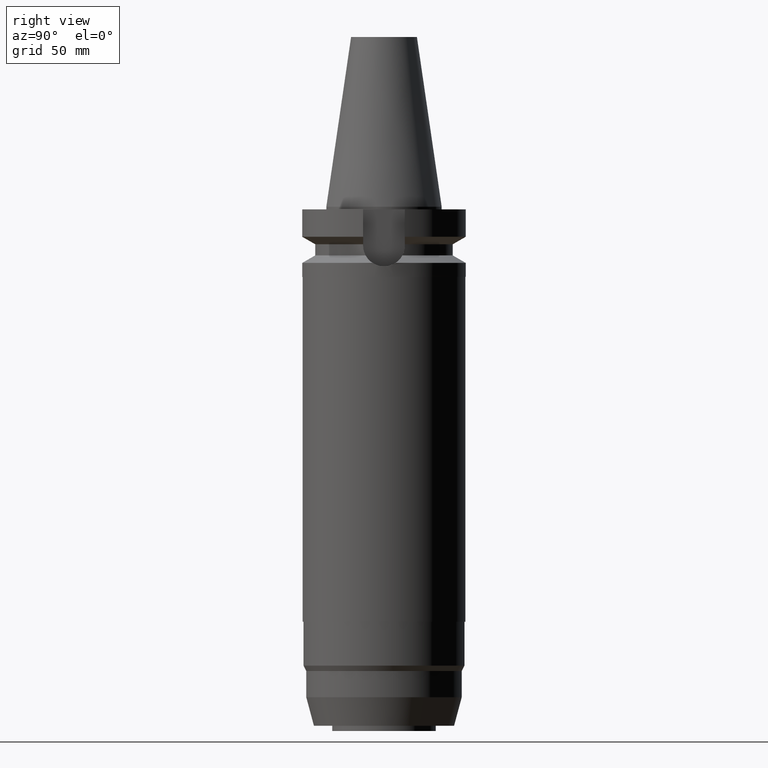
[diagram: clean part render]
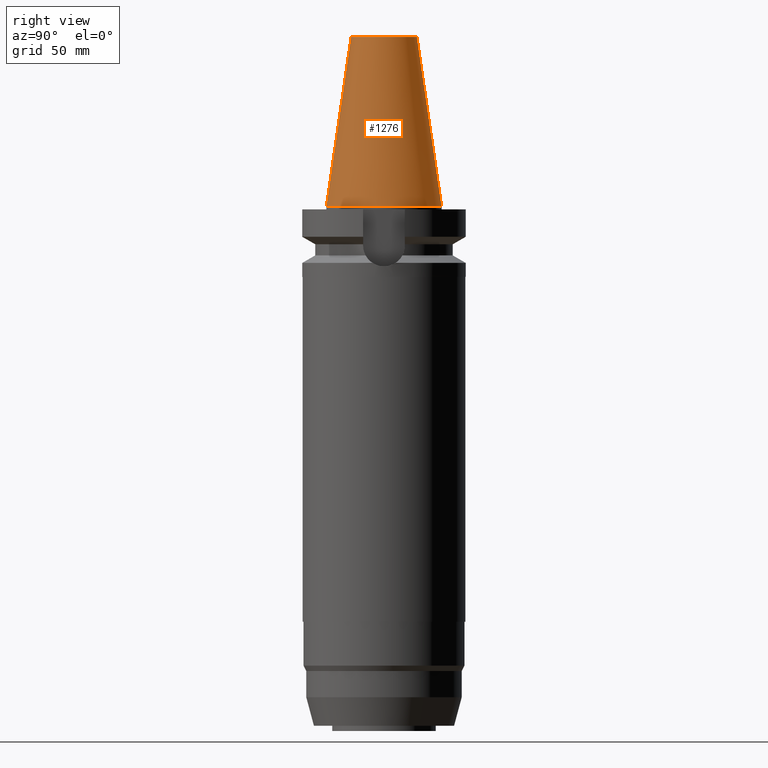
[diagram: same view with one face highlighted and labeled with its STEP entity id]
A machine part, right view. The second image highlights one B-rep face of the part: STEP entity #1276.
In plain terms, the highlighted conical surface has half-angle 8.297 deg.
Its self-contained STEP definition (entity closure, byte-faithful):
#26=CARTESIAN_POINT('',(0.E0,1.625106302469E-14,6.54E1));
#27=DIRECTION('',(0.E0,0.E0,-1.E0));
#28=DIRECTION('',(0.E0,1.E0,0.E0));
#29=AXIS2_PLACEMENT_3D('',#26,#27,#28);
#50=DIRECTION('',(0.E0,-1.443043893540E-1,-9.895333461856E-1));
#51=VECTOR('',#50,6.609175956738E1);
#52=CARTESIAN_POINT('',(0.E0,-1.268766899430E1,6.54E1));
#53=LINE('',#52,#51);
#65=DIRECTION('',(0.E0,1.443043893540E-1,-9.895333461856E-1));
#66=VECTOR('',#65,6.609175956738E1);
#67=CARTESIAN_POINT('',(0.E0,1.268766899430E1,6.54E1));
#68=LINE('',#67,#66);
#72=CARTESIAN_POINT('',(0.E0,1.625106302469E-14,1.136868377216E-13));
#73=DIRECTION('',(0.E0,0.E0,-1.E0));
#74=DIRECTION('',(0.E0,1.E0,0.E0));
#75=AXIS2_PLACEMENT_3D('',#72,#73,#74);
#1066=CARTESIAN_POINT('',(0.E0,-1.268766899430E1,6.54E1));
#1067=CARTESIAN_POINT('',(0.E0,1.268766899430E1,6.54E1));
#1068=VERTEX_POINT('',#1066);
#1069=VERTEX_POINT('',#1067);
#1219=CARTESIAN_POINT('',(0.E0,2.2225E1,1.065814103640E-13));
#1220=VERTEX_POINT('',#1219);
#1221=CARTESIAN_POINT('',(0.E0,-2.2225E1,1.065814103640E-13));
#1222=VERTEX_POINT('',#1221);
#1264=CARTESIAN_POINT('',(0.E0,1.625106302469E-14,3.27E1));
#1265=DIRECTION('',(0.E0,0.E0,-1.E0));
#1266=DIRECTION('',(0.E0,-1.E0,0.E0));
#1267=AXIS2_PLACEMENT_3D('',#1264,#1265,#1266);
#1268=CONICAL_SURFACE('',#1267,1.745633449715E1,8.297E0);
#1269=ORIENTED_EDGE('',*,*,#1254,.T.);
#1271=ORIENTED_EDGE('',*,*,#1270,.T.);
#1272=ORIENTED_EDGE('',*,*,#1257,.F.);
#1273=ORIENTED_EDGE('',*,*,#1238,.F.);
#1274=EDGE_LOOP('',(#1269,#1271,#1272,#1273));
#1275=FACE_OUTER_BOUND('',#1274,.F.);
#30=CIRCLE('',#29,1.268766899430E1);
#76=CIRCLE('',#75,2.2225E1);
#1238=EDGE_CURVE('',#1069,#1068,#30,.T.);
#1254=EDGE_CURVE('',#1069,#1220,#68,.T.);
#1257=EDGE_CURVE('',#1068,#1222,#53,.T.);
#1270=EDGE_CURVE('',#1220,#1222,#76,.T.);
#1276=ADVANCED_FACE('',(#1275),#1268,.T.);